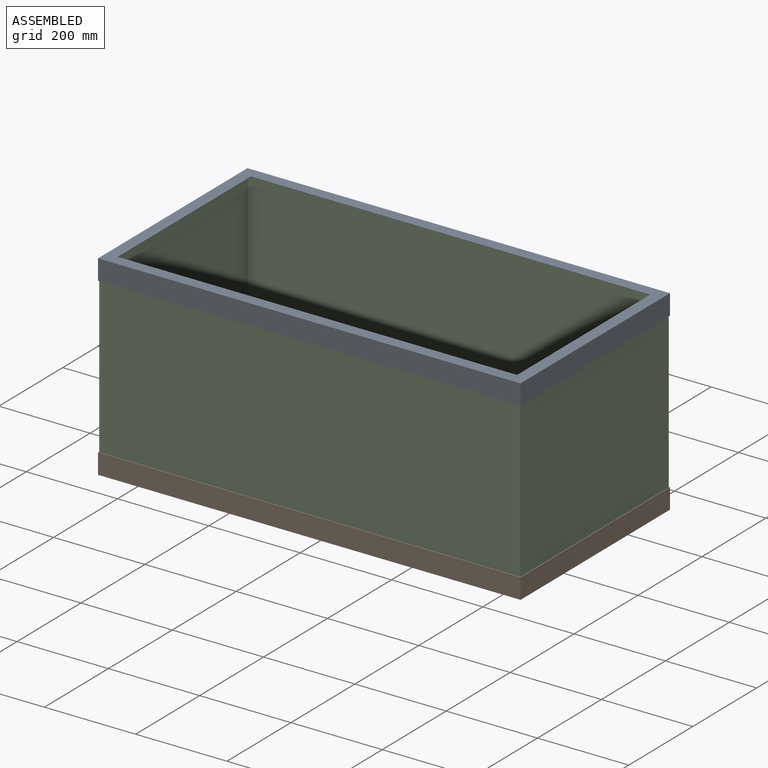
[diagram: assembled view]
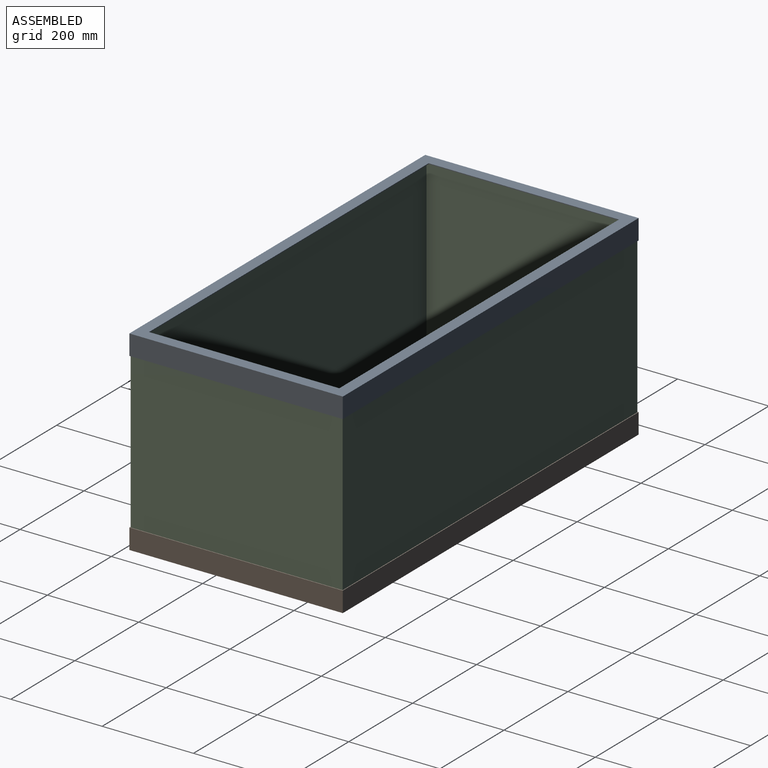
[diagram: assembled view, second angle]
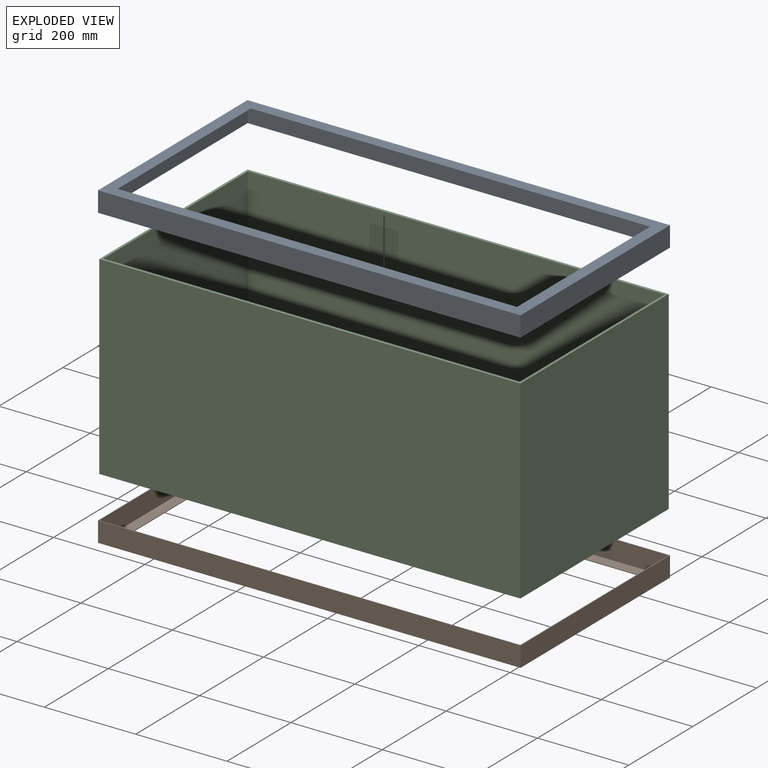
[diagram: exploded view]
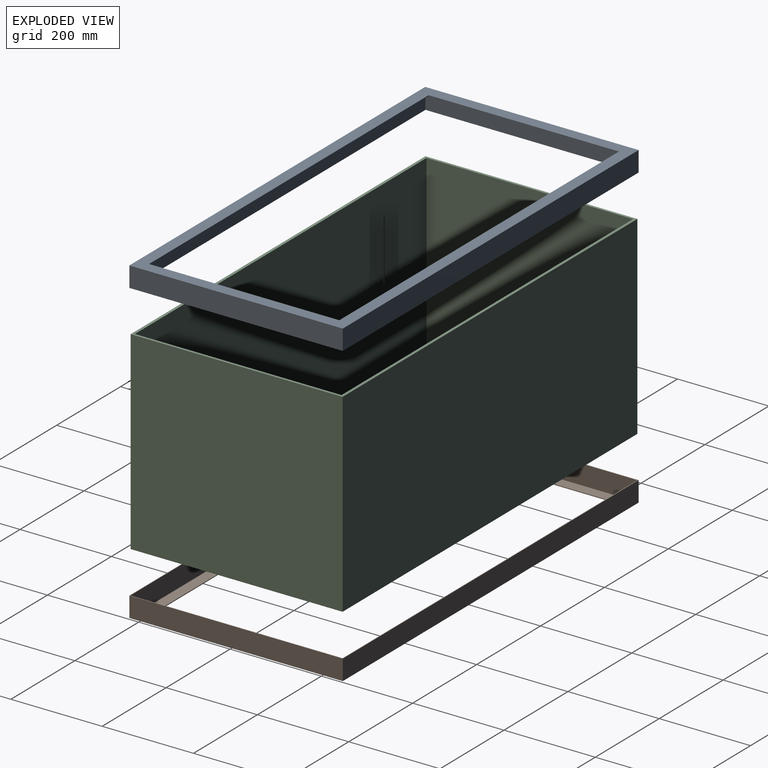
[diagram: exploded view, second angle]
ASSEMBLY  parts=3 mates=2
PART A: 15 faces, bbox 925.5x467.5x44.5 mm
  f0: plane 925.51x467.52mm, normal (0,0,-1), area 68185.3mm2, adj f3,f4,f5,f6,f11,f12,f13,f14
  f1: plane 922.34x464.34mm, normal (0,0,1), area 63772.6mm2, adj f7,f8,f9,f10,f11,f12,f13,f14
  f2: plane 925.51x467.52mm, normal (0,0,1), area 4412.8mm2, adj f3,f4,f5,f6,f7,f8,f9,f10
  f3: plane 925.51x44.45mm, normal (0,1,0), area 41139mm2, adj f0,f2,f4,f6
  f4: plane 467.52x44.45mm, normal (-1,0,0), area 20781.2mm2, adj f0,f2,f3,f5
  f5: plane 925.51x44.45mm, normal (0,-1,0), area 41139mm2, adj f0,f2,f4,f6
  f6: plane 467.52x44.45mm, normal (1,0,0), area 20781.2mm2, adj f0,f2,f3,f5
  f7: plane 922.34x42.86mm, normal (0,-1,0), area 39533.7mm2, adj f1,f2,f8,f10
  f8: plane 464.34x42.86mm, normal (1,0,0), area 19902.9mm2, adj f1,f2,f7,f9
  f9: plane 922.34x42.86mm, normal (0,1,0), area 39533.7mm2, adj f1,f2,f8,f10
  f10: plane 464.34x42.86mm, normal (-1,0,0), area 19902.9mm2, adj f1,f2,f7,f9
  f11: plane 874.71x1.59mm, normal (0,1,0), area 1388.6mm2, adj f0,f1,f12,f14
  f12: plane 416.72x1.59mm, normal (1,0,0), area 661.5mm2, adj f0,f1,f11,f13
  f13: plane 874.71x1.59mm, normal (0,-1,0), area 1388.6mm2, adj f0,f1,f12,f14
  f14: plane 416.72x1.59mm, normal (-1,0,0), area 661.5mm2, adj f0,f1,f11,f13
PART B: same geometry as A
PART C: 11 faces, bbox 922.3x464.3x425.5 mm
  f0: plane 922.34x464.34mm, normal (0,0,1), area 15650.2mm2, adj f1,f2,f3,f4,f6,f7,f8,f9
  f1: plane 922.34x425.45mm, normal (0,1,0), area 392408.5mm2, adj f0,f2,f4,f5
  f2: plane 464.34x425.45mm, normal (-1,0,0), area 197555mm2, adj f0,f1,f3,f5
  f3: plane 922.34x425.45mm, normal (0,-1,0), area 392408.5mm2, adj f0,f2,f4,f5
  f4: plane 464.34x425.45mm, normal (1,0,0), area 197555mm2, adj f0,f1,f3,f5
  f5: plane 922.34x464.34mm, normal (0,0,-1), area 428281.7mm2, adj f1,f2,f3,f4
  f6: plane 912.02x420.29mm, normal (0,-1,0), area 383312.9mm2, adj f0,f7,f9,f10
  f7: plane 452.44x420.29mm, normal (1,0,0), area 190155.2mm2, adj f0,f6,f8,f10
  f8: plane 912.02x420.29mm, normal (0,1,0), area 383312.9mm2, adj f0,f7,f9,f10
  f9: plane 452.44x420.29mm, normal (-1,0,0), area 190155.2mm2, adj f0,f6,f8,f10
  f10: plane 912.02x452.44mm, normal (0,0,1), area 412631.5mm2, adj f6,f7,f8,f9
PLACE A rot(axis=(1,0,0),180deg) t=(-438.72,-186.71,136.4)mm
PLACE B t=(-438.72,-151.74,-292.22)mm
PLACE C t=(-420.34,-154.54,-290.64)mm
MATE fastened C.f5 <-> B.f1  axis (0,0,-1) through (23.37,-401.4,-290.64)mm
MATE fastened C.f0 <-> A.f1  axis (0,0,1) through (23.37,-401.4,134.81)mm
